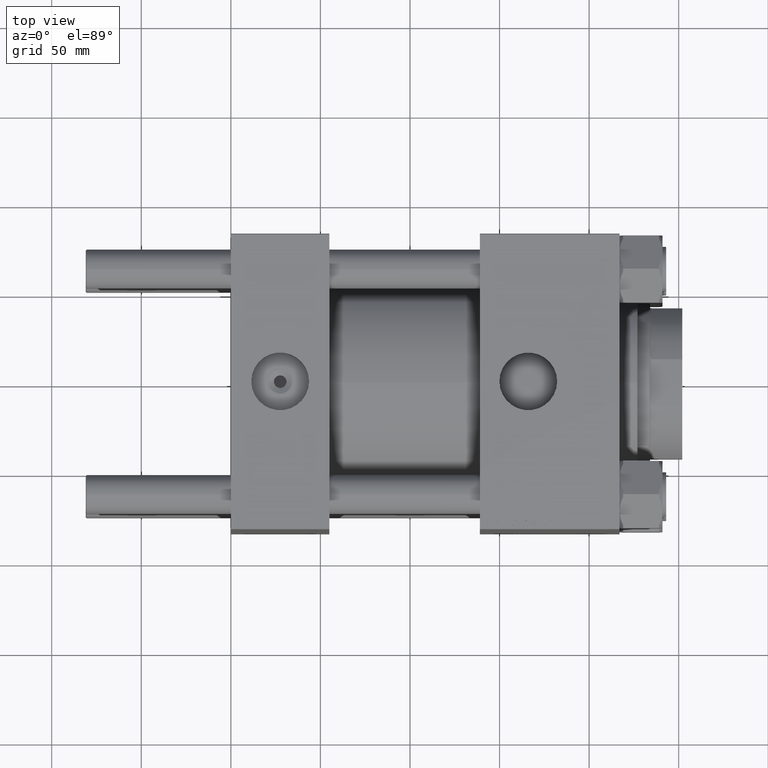
[diagram: clean part render]
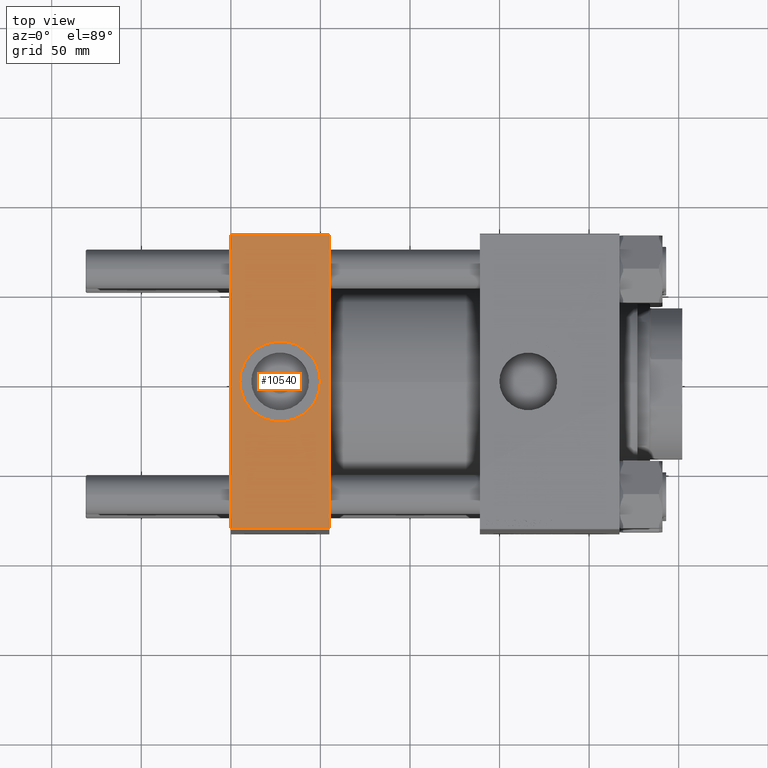
[diagram: same view with one face highlighted and labeled with its STEP entity id]
A machine part, top view. The second image highlights one B-rep face of the part: STEP entity #10540.
In plain terms, the highlighted planar face has unit normal (0, 0, -1).
Its self-contained STEP definition (entity closure, byte-faithful):
#330 = AXIS2_PLACEMENT_3D ( 'NONE', #2652, #9807, #49446 ) ;
#715 = VECTOR ( 'NONE', #38344, 1000.000000000000000 ) ;
#2280 = LINE ( 'NONE', #25185, #29405 ) ;
#2641 = EDGE_LOOP ( 'NONE', ( #9411, #11791, #17022, #34836 ) ) ;
#2652 = CARTESIAN_POINT ( 'NONE',  ( 55.00000000000000000, 82.50000000000002842, 82.50000000000002842 ) ) ;
#6032 = CARTESIAN_POINT ( 'NONE',  ( 0.000000000000000000, 82.00000000000005684, 82.50000000000002842 ) ) ;
#7048 = AXIS2_PLACEMENT_3D ( 'NONE', #10646, #49540, #26658 ) ;
#7075 = VERTEX_POINT ( 'NONE', #27112 ) ;
#9411 = ORIENTED_EDGE ( 'NONE', *, *, #39570, .T. ) ;
#9807 = DIRECTION ( 'NONE',  ( 0.000000000000000000, 8.410780489584519171E-17, -1.000000000000000000 ) ) ;
#9845 = LINE ( 'NONE', #6032, #42523 ) ;
#9922 = DIRECTION ( 'NONE',  ( 1.000000000000000000, 0.000000000000000000, 0.000000000000000000 ) ) ;
#10540 = ADVANCED_FACE ( 'NONE', ( #37498, #25805 ), #33196, .F. ) ;
#10644 = LINE ( 'NONE', #22344, #715 ) ;
#10646 = CARTESIAN_POINT ( 'NONE',  ( 27.50000000000000000, -8.673617379884037050E-15, 82.50000000000001421 ) ) ;
#11277 = CARTESIAN_POINT ( 'NONE',  ( 55.00000000000000000, -81.99999999999997158, 82.50000000000001421 ) ) ;
#11791 = ORIENTED_EDGE ( 'NONE', *, *, #24604, .T. ) ;
#13482 = CARTESIAN_POINT ( 'NONE',  ( 27.50000000000000000, -8.673617379884037050E-15, 82.50000000000001421 ) ) ;
#15369 = CARTESIAN_POINT ( 'NONE',  ( 0.000000000000000000, -81.99999999999997158, 82.50000000000001421 ) ) ;
#17022 = ORIENTED_EDGE ( 'NONE', *, *, #22762, .F. ) ;
#17615 = EDGE_CURVE ( 'NONE', #30970, #47234, #29009, .T. ) ;
#17894 = CIRCLE ( 'NONE', #27624, 22.50000000000000355 ) ;
#19165 = DIRECTION ( 'NONE',  ( 1.000000000000000000, 0.000000000000000000, 0.000000000000000000 ) ) ;
#20730 = VERTEX_POINT ( 'NONE', #21122 ) ;
#21122 = CARTESIAN_POINT ( 'NONE',  ( 0.000000000000000000, 82.00000000000005684, 82.50000000000002842 ) ) ;
#22344 = CARTESIAN_POINT ( 'NONE',  ( 55.00000000000000000, 82.50000000000002842, 82.50000000000002842 ) ) ;
#22762 = EDGE_CURVE ( 'NONE', #42794, #7075, #10644, .T. ) ;
#23424 = VECTOR ( 'NONE', #19165, 1000.000000000000000 ) ;
#24604 = EDGE_CURVE ( 'NONE', #30836, #7075, #46362, .T. ) ;
#25185 = CARTESIAN_POINT ( 'NONE',  ( 0.000000000000000000, 82.50000000000002842, 82.50000000000002842 ) ) ;
#25805 = FACE_OUTER_BOUND ( 'NONE', #2641, .T. ) ;
#26658 = DIRECTION ( 'NONE',  ( 1.000000000000000000, 0.000000000000000000, 0.000000000000000000 ) ) ;
#27112 = CARTESIAN_POINT ( 'NONE',  ( 55.00000000000000000, -81.99999999999997158, 82.50000000000001421 ) ) ;
#27624 = AXIS2_PLACEMENT_3D ( 'NONE', #13482, #45239, #9922 ) ;
#28251 = CARTESIAN_POINT ( 'NONE',  ( 50.00000000000000000, -8.673617379884037050E-15, 82.50000000000001421 ) ) ;
#28621 = EDGE_LOOP ( 'NONE', ( #46041, #34689 ) ) ;
#29009 = CIRCLE ( 'NONE', #7048, 22.50000000000000355 ) ;
#29405 = VECTOR ( 'NONE', #33317, 1000.000000000000000 ) ;
#30836 = VERTEX_POINT ( 'NONE', #15369 ) ;
#30970 = VERTEX_POINT ( 'NONE', #48141 ) ;
#33196 = PLANE ( 'NONE',  #330 ) ;
#33317 = DIRECTION ( 'NONE',  ( 0.000000000000000000, -1.000000000000000000, -8.410780489584519171E-17 ) ) ;
#34029 = CARTESIAN_POINT ( 'NONE',  ( 55.00000000000000000, 82.00000000000005684, 82.50000000000002842 ) ) ;
#34689 = ORIENTED_EDGE ( 'NONE', *, *, #17615, .F. ) ;
#34836 = ORIENTED_EDGE ( 'NONE', *, *, #43880, .T. ) ;
#34901 = EDGE_CURVE ( 'NONE', #47234, #30970, #17894, .T. ) ;
#36799 = DIRECTION ( 'NONE',  ( -1.000000000000000000, 0.000000000000000000, 0.000000000000000000 ) ) ;
#37498 = FACE_BOUND ( 'NONE', #28621, .T. ) ;
#38344 = DIRECTION ( 'NONE',  ( 0.000000000000000000, -1.000000000000000000, -8.410780489584519171E-17 ) ) ;
#39570 = EDGE_CURVE ( 'NONE', #20730, #30836, #2280, .T. ) ;
#42523 = VECTOR ( 'NONE', #36799, 1000.000000000000000 ) ;
#42794 = VERTEX_POINT ( 'NONE', #34029 ) ;
#43880 = EDGE_CURVE ( 'NONE', #42794, #20730, #9845, .T. ) ;
#45239 = DIRECTION ( 'NONE',  ( 0.000000000000000000, 0.000000000000000000, 1.000000000000000000 ) ) ;
#46041 = ORIENTED_EDGE ( 'NONE', *, *, #34901, .F. ) ;
#46362 = LINE ( 'NONE', #11277, #23424 ) ;
#47234 = VERTEX_POINT ( 'NONE', #28251 ) ;
#48141 = CARTESIAN_POINT ( 'NONE',  ( 4.999999999999993783, -5.918162081802491483E-15, 82.50000000000001421 ) ) ;
#49446 = DIRECTION ( 'NONE',  ( 0.000000000000000000, 1.000000000000000000, 8.410780489584519171E-17 ) ) ;
#49540 = DIRECTION ( 'NONE',  ( 0.000000000000000000, 0.000000000000000000, 1.000000000000000000 ) ) ;